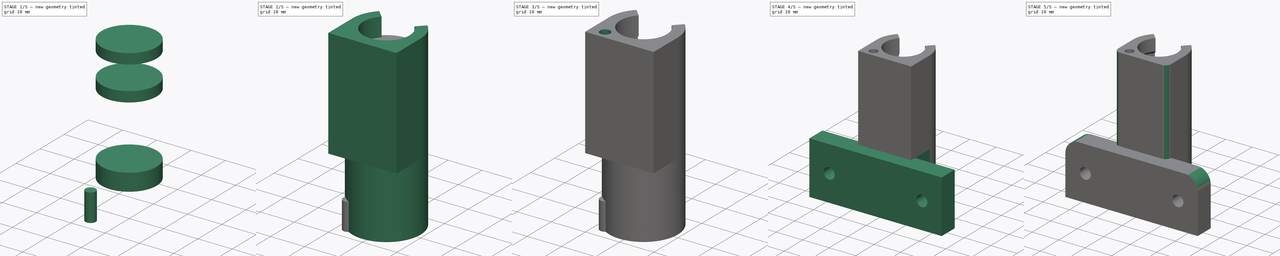
[diagram: build sequence overview — one tinted view per stage of 5, left to right]
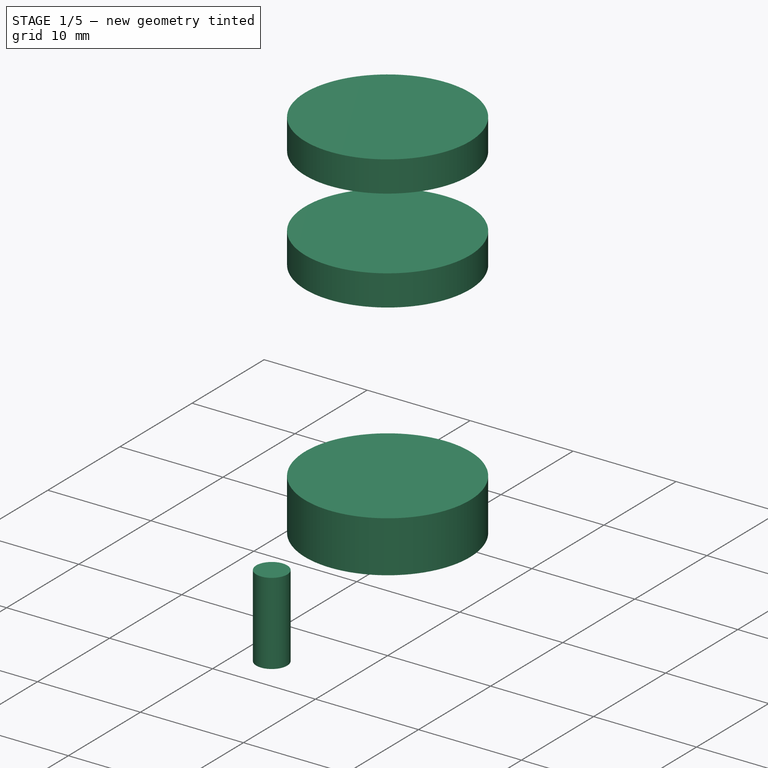
[diagram: stage 1 of 5 — iso view after this stage's code; geometry added in this stage tinted green]
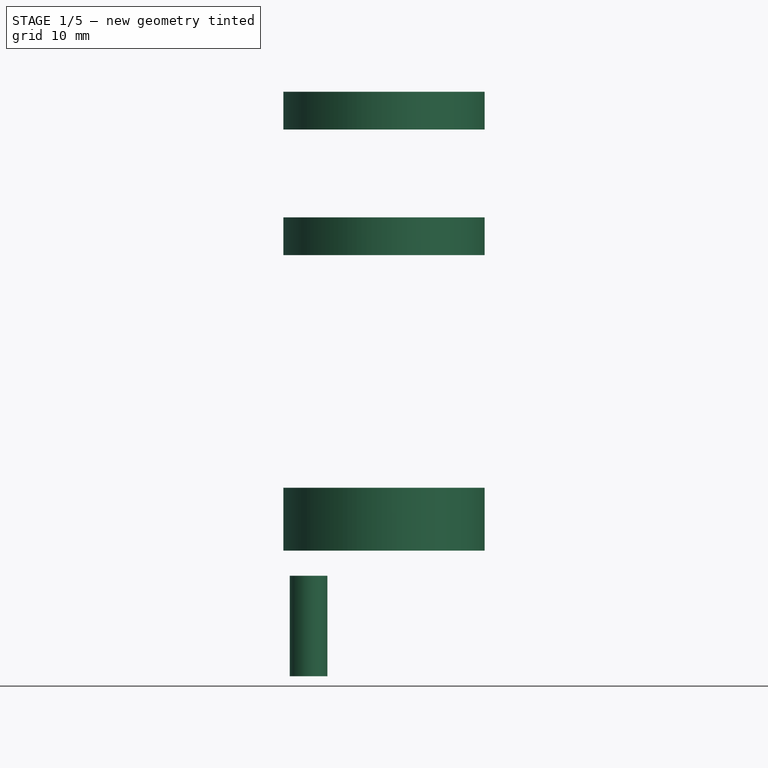
[diagram: stage 1 of 5 — front view after this stage's code; geometry added in this stage tinted green]
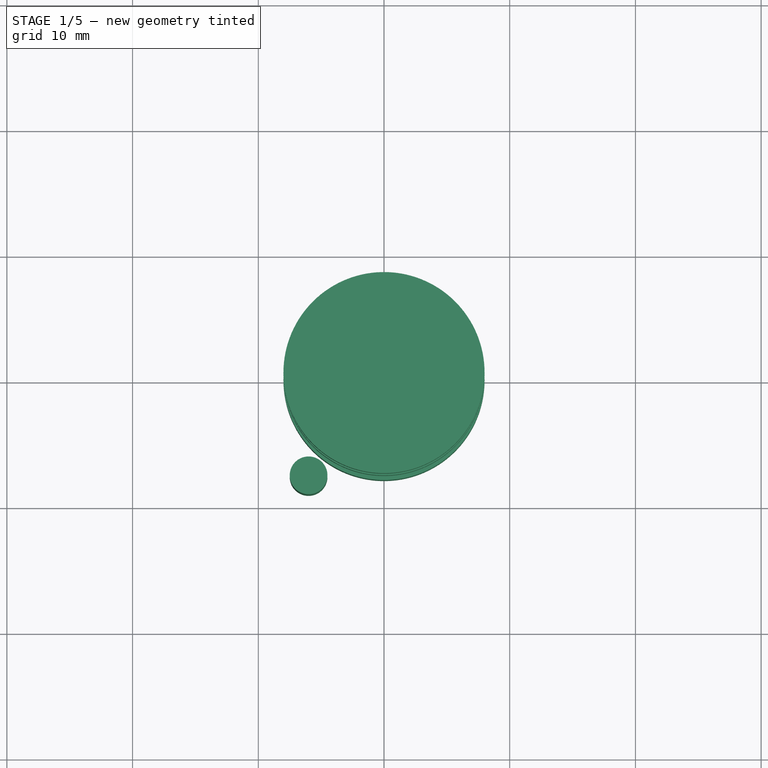
[diagram: stage 1 of 5 — top view after this stage's code; geometry added in this stage tinted green]
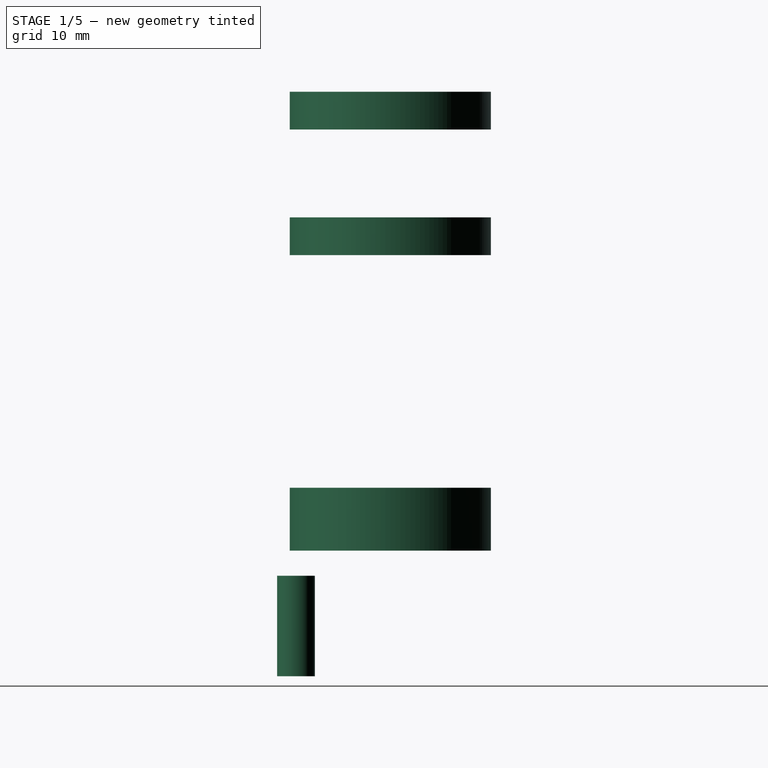
[diagram: stage 1 of 5 — right view after this stage's code; geometry added in this stage tinted green]
FCSTD DOCUMENT  (FreeCAD 0.16R6704 (Git))
Label: z-carriage1
License: All rights reserved
LicenseURL: http://de.wikipedia.org/wiki/Alle_Rechte_vorbehalten
objects: Sketcher::SketchObject×8, PartDesign::Pocket×5, Part::Cylinder×4, Part::Cut×4, PartDesign::Pad×3, PartDesign::Fillet×2, Part::Fuse×1, PartDesign::Chamfer×1
note: 36 computed .brp shape members not serialized (recipe doc carries the construction recipe); baked Part::Feature solids carry a one-line shape summary decoded from their .brp

FEATURE [Part::Cylinder] Cylinder  label="Zylinder"
  Angle = 360
  Height = 5
  Placement = pos=(0,0,10) rot=(0,0,1;0rad)
  Radius = 8
FEATURE [Part::Cylinder] Cylinder001  label="Zylinder001"
  Angle = 360
  Height = 3
  Placement = pos=(0,0,33.5) rot=(0,0,1;0rad)
  Radius = 8
FEATURE [Part::Cylinder] Cylinder002  label="Zylinder002"
  Angle = 360
  Height = 3
  Placement = pos=(0,0,43.5) rot=(0,0,1;0rad)
  Radius = 8
FEATURE [Part::Cylinder] Cylinder003  label="Zylinder003"
  Angle = 360
  Height = 8
  Placement = pos=(-6,-7.5,0) rot=(0,0,1;0rad)
  Radius = 1.5
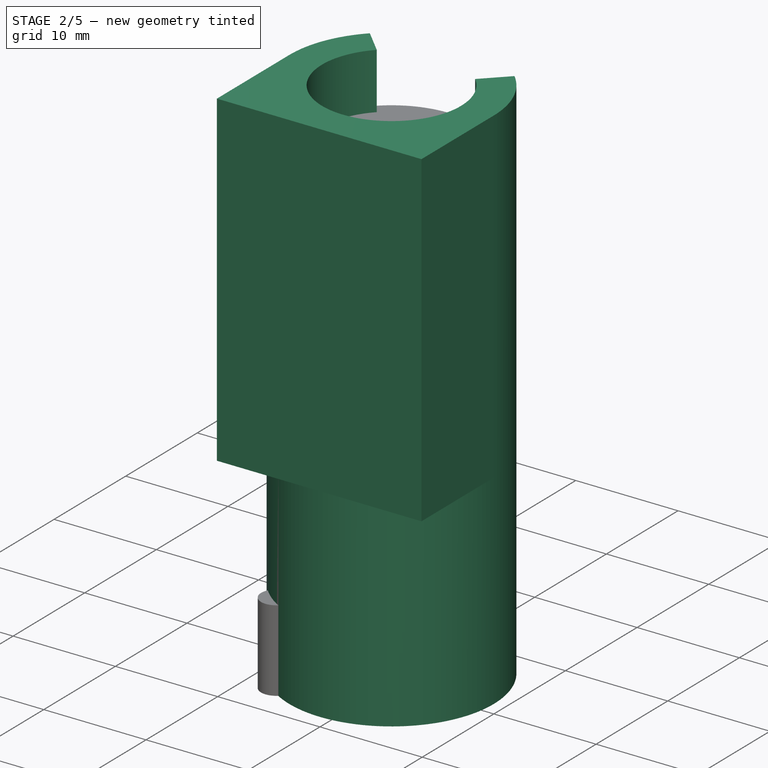
[diagram: stage 2 of 5 — iso view after this stage's code; geometry added in this stage tinted green]
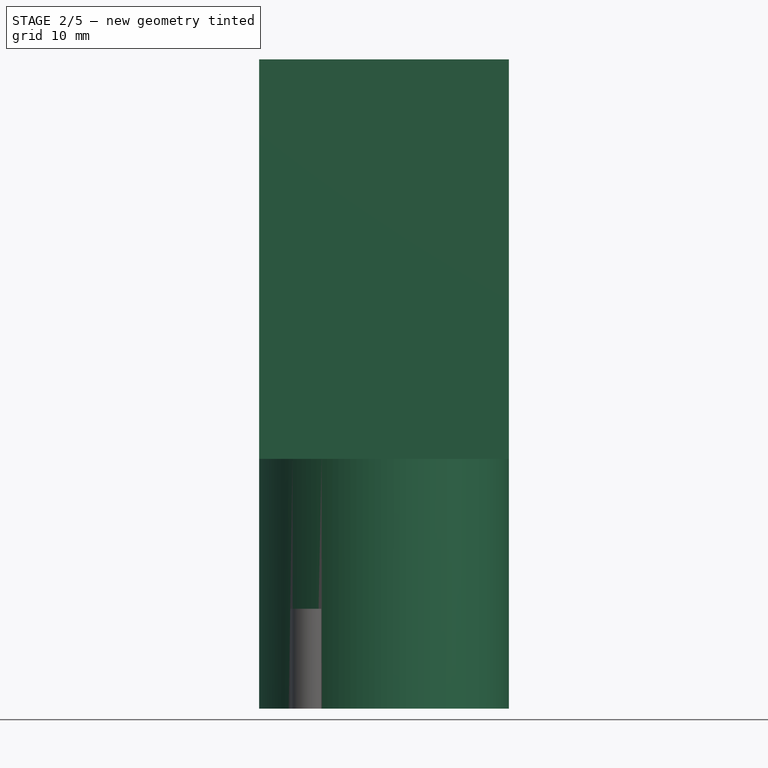
[diagram: stage 2 of 5 — front view after this stage's code; geometry added in this stage tinted green]
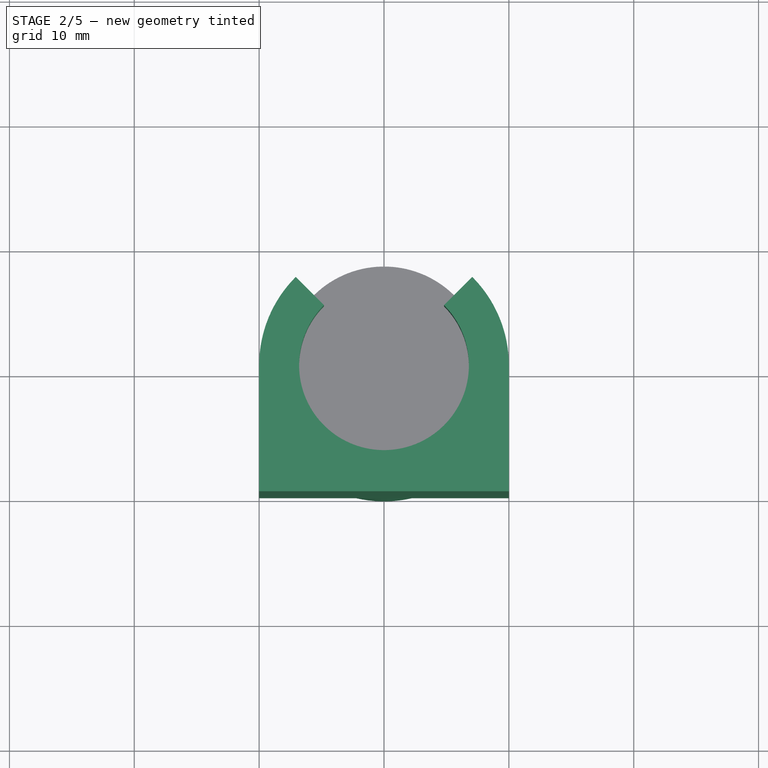
[diagram: stage 2 of 5 — top view after this stage's code; geometry added in this stage tinted green]
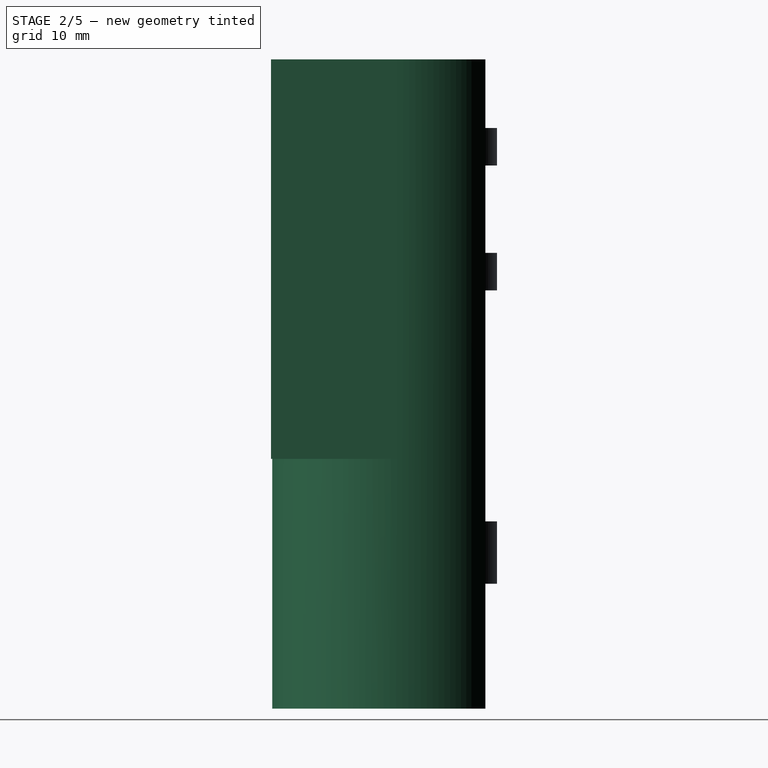
[diagram: stage 2 of 5 — right view after this stage's code; geometry added in this stage tinted green]
FEATURE [Sketcher::SketchObject] Sketch
  sketch-geometry (4):
    g0: ArcOfCircle CenterX=0 CenterY=0 CenterZ=0 NormalX=0 NormalY=0 NormalZ=1 Radius=10 StartAngle=2.35619 EndAngle=7.06858
    g1: ArcOfCircle CenterX=0 CenterY=0 CenterZ=0 NormalX=0 NormalY=0 NormalZ=1 Radius=6 StartAngle=2.35619 EndAngle=7.06858
    g2: LineSegment StartX=-4.24264 StartY=4.24264 StartZ=0 EndX=-7.07107 EndY=7.07107 EndZ=0
    g3: LineSegment StartX=7.07107 StartY=7.07107 StartZ=0 EndX=4.24264 EndY=4.24264 EndZ=0
  constraints (12):
    c: Coincident(g0,g-1)
    c: Coincident(g1,g-1)
    c: Coincident(g2,g1)
    c: Coincident(g2,g0)
    c: Coincident(g3,g0)
    c: Coincident(g3,g1)
    c: Perpendicular(g1,g2)
    c: Perpendicular(g1,g3)
    c: Symmetric(g1,g1,g-2)
    c: Angle(g1) = 4.71239
    c: Radius(g1) = 6
    c: Radius(g0) = 10
FEATURE [PartDesign::Pad] Pad
  Length = 52
  Length2 = 100
  Sketch = -> Sketch
  Type = 0
FEATURE [Sketcher::SketchObject] Sketch005
  Placement = pos=(0,0,52) rot=(0,0,1;0rad)
  Support = -> Pad [Face6]
  sketch-geometry (1):
    g0: Circle CenterX=0 CenterY=0 CenterZ=0 NormalX=0 NormalY=0 NormalZ=1 Radius=6.8
  constraints (2):
    c: Coincident(g0,g-1)
    c: Radius(g0) = 6.8
FEATURE [PartDesign::Pocket] Pocket
  Length = 25
  Sketch = -> Sketch005
  Type = 0
FEATURE [Sketcher::SketchObject] Sketch006
  Placement = pos=(0,0,0) rot=(1,0,0;3.14159rad)
  Support = -> Pocket [Face2]
  sketch-geometry (1):
    g0: Circle CenterX=0 CenterY=0 CenterZ=0 NormalX=0 NormalY=0 NormalZ=1 Radius=6.7
  constraints (2):
    c: Coincident(g0,g-1)
    c: Radius(g0) = 6.7
FEATURE [PartDesign::Pocket] Pocket001
  Length = 25
  Sketch = -> Sketch006
  Type = 0
FEATURE [Sketcher::SketchObject] Sketch007
  ExternalGeometry = -> [Pocket001]
  Placement = pos=(0,0,52) rot=(0,0,1;0rad)
  Support = -> Pocket001 [Face4]
  sketch-geometry (4):
    g0: ArcOfCircle CenterX=0 CenterY=0 CenterZ=0 NormalX=0 NormalY=0 NormalZ=1 Radius=10 StartAngle=3.14159 EndAngle=6.28319
    g1: LineSegment StartX=-10 StartY=-2e-12 StartZ=0 EndX=-10 EndY=-10.1 EndZ=0
    g2: LineSegment StartX=10 StartY=4e-12 StartZ=0 EndX=10 EndY=-10.1 EndZ=0
    g3: LineSegment StartX=-10 StartY=-10.1 StartZ=0 EndX=10 EndY=-10.1 EndZ=0
  constraints (12):
    c: Coincident(g0,g-1)
    c: PointOnObject(g0,g-1)
    c: PointOnObject(g0,g-3)
    c: PointOnObject(g0,g-1)
    c: Coincident(g1,g0)
    c: Vertical(g1)
    c: Coincident(g2,g0)
    c: Vertical(g2)
    c: Coincident(g3,g1)
    c: Coincident(g2,g3)
    c: Equal(g2,g1)
    c: DistanceY(g2,g0) = 10.1
FEATURE [PartDesign::Pad] Pad002
  Length = 32
  Length2 = 100
  Reversed = true
  Sketch = -> Sketch007
  Type = 0
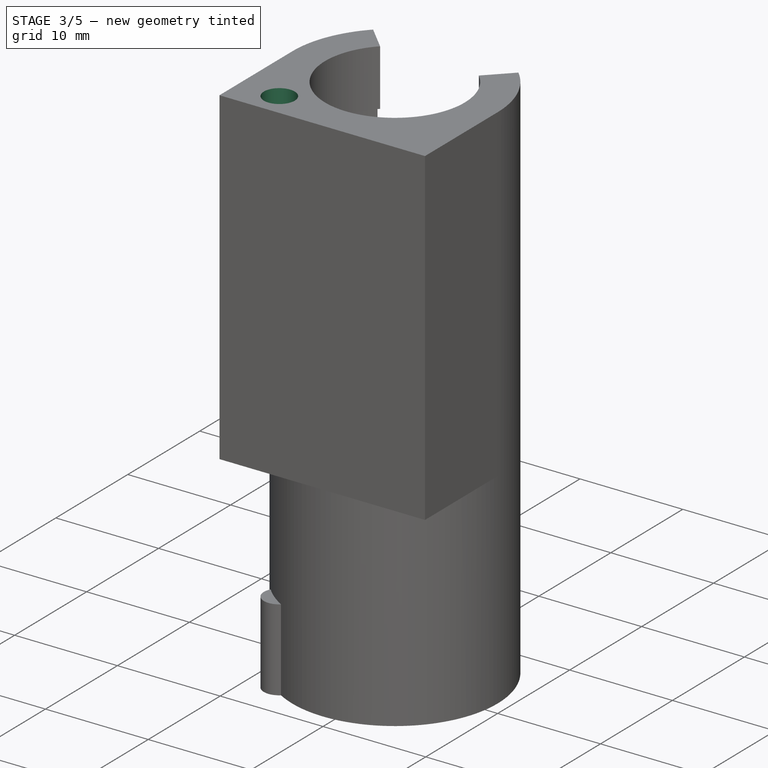
[diagram: stage 3 of 5 — iso view after this stage's code; geometry added in this stage tinted green]
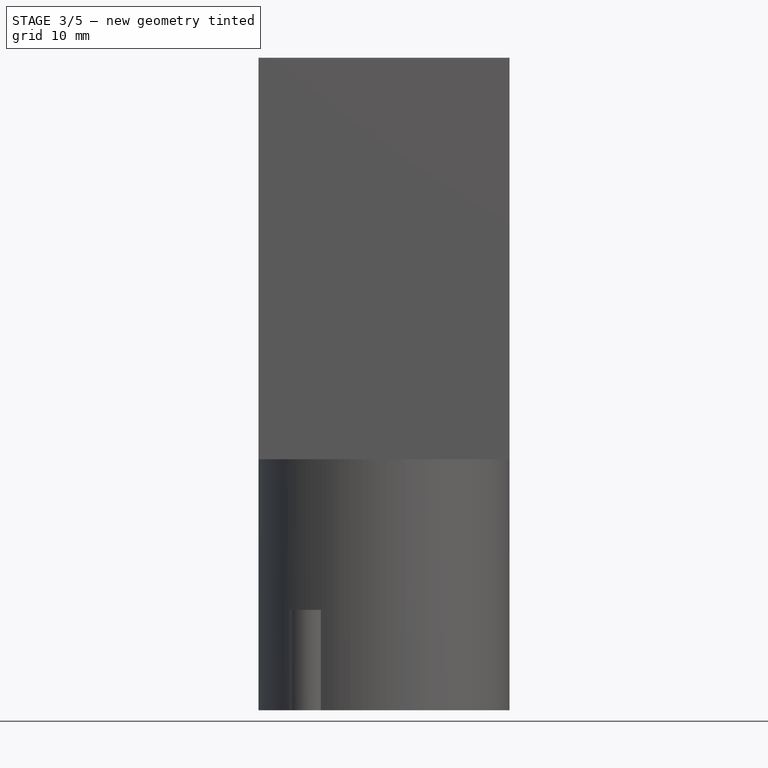
[diagram: stage 3 of 5 — front view after this stage's code; geometry added in this stage tinted green]
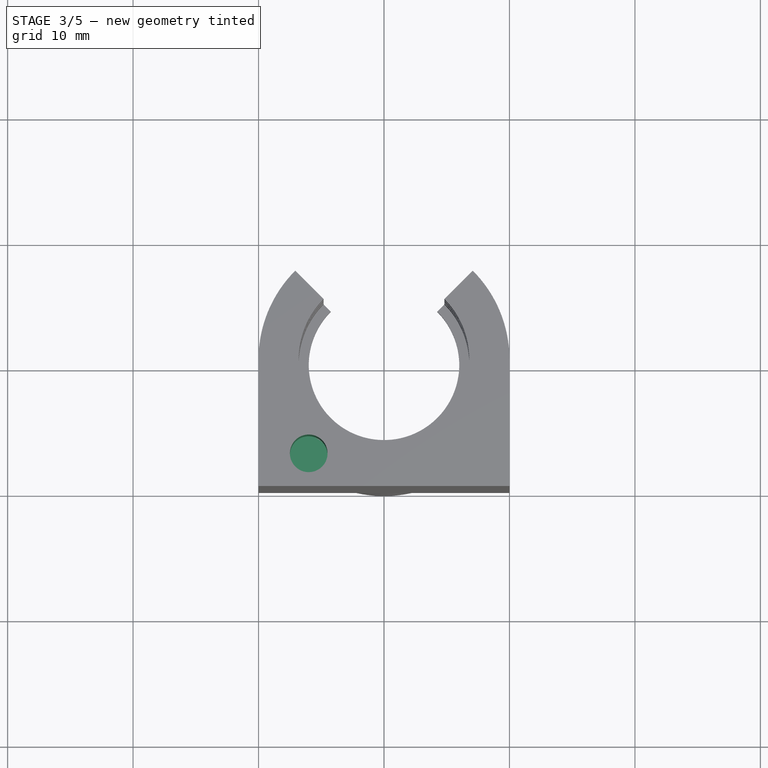
[diagram: stage 3 of 5 — top view after this stage's code; geometry added in this stage tinted green]
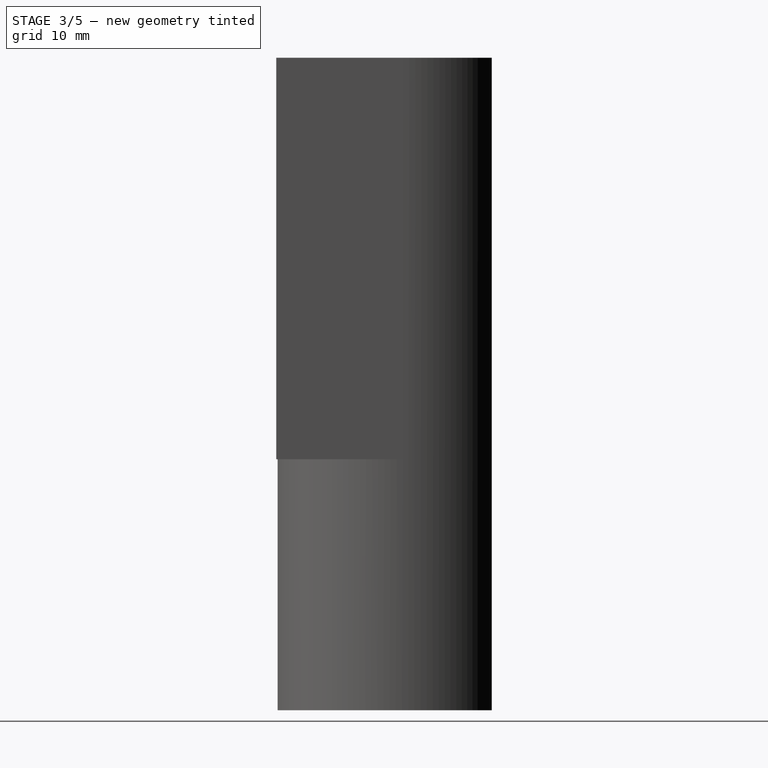
[diagram: stage 3 of 5 — right view after this stage's code; geometry added in this stage tinted green]
FEATURE [Part::Cut] Cut
  Base = -> Pad002
  Tool = -> Cylinder
FEATURE [Part::Cut] Cut001
  Base = -> Cut
  Tool = -> Cylinder001
FEATURE [Part::Cut] Cut002
  Base = -> Cut001
  Tool = -> Cylinder002
FEATURE [Sketcher::SketchObject] Sketch010
  Placement = pos=(0,0,52) rot=(0,0,1;0rad)
  Support = -> Cut002 [Face4]
  sketch-geometry (1):
    g0: Circle CenterX=-6 CenterY=-7.494 CenterZ=0 NormalX=0 NormalY=0 NormalZ=1 Radius=1.5
  constraints (3):
    c: Radius(g0) = 1.5
    c: Distance(g-1,g0) = 9.6
    c: DistanceX(g0,g-1) = 6
FEATURE [PartDesign::Pocket] Pocket004
  Length = 8
  Sketch = -> Sketch010
  Type = 0
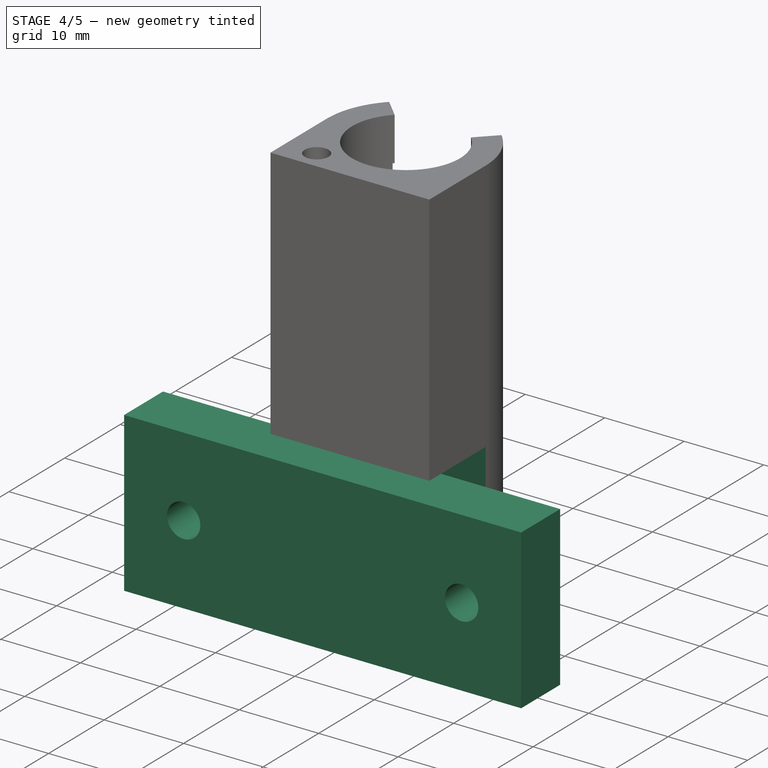
[diagram: stage 4 of 5 — iso view after this stage's code; geometry added in this stage tinted green]
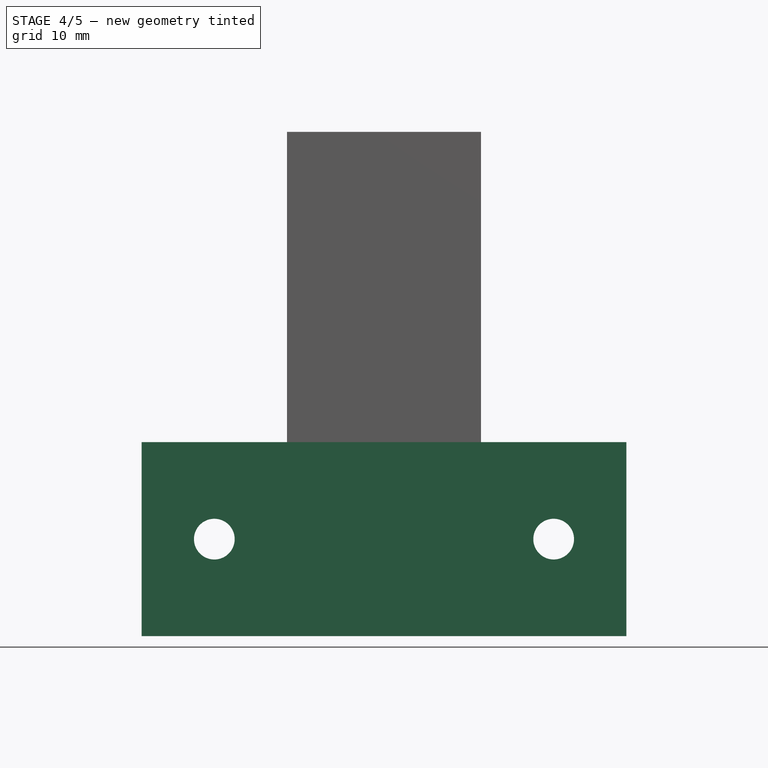
[diagram: stage 4 of 5 — front view after this stage's code; geometry added in this stage tinted green]
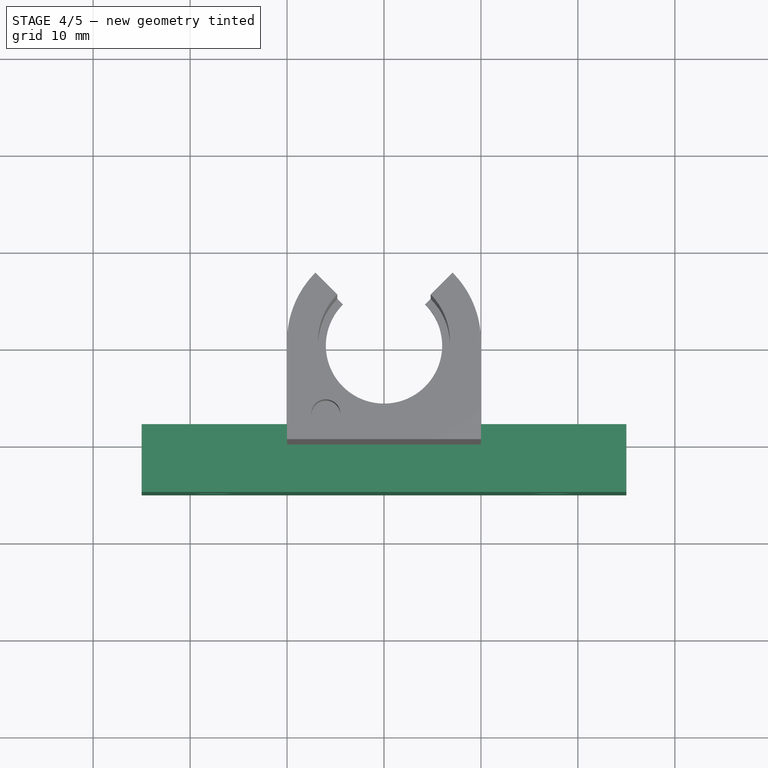
[diagram: stage 4 of 5 — top view after this stage's code; geometry added in this stage tinted green]
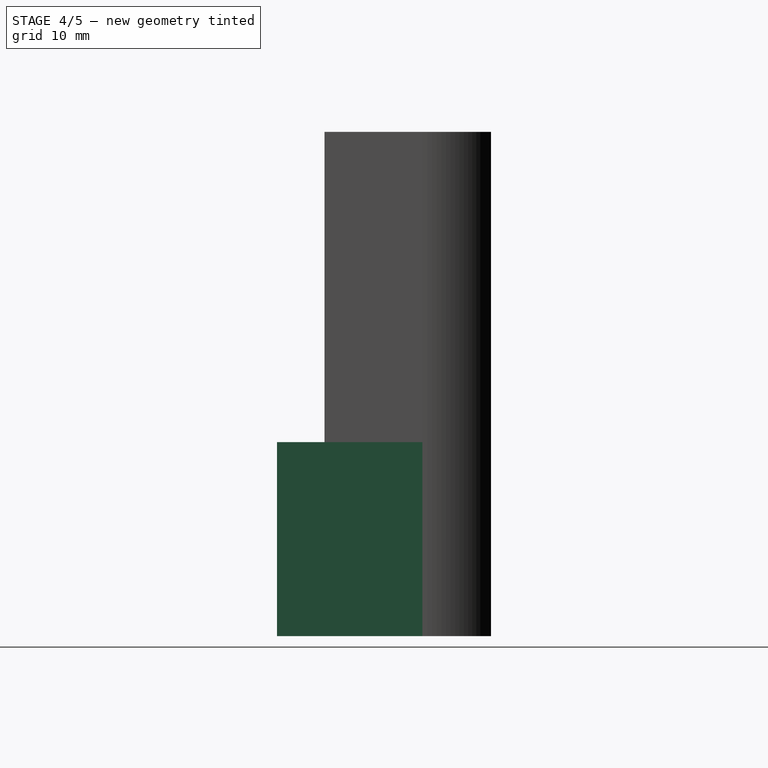
[diagram: stage 4 of 5 — right view after this stage's code; geometry added in this stage tinted green]
FEATURE [Sketcher::SketchObject] Sketch003
  sketch-geometry (8):
    g0: ArcOfCircle CenterX=0 CenterY=0 CenterZ=0 NormalX=0 NormalY=0 NormalZ=1 Radius=10 StartAngle=3.14159 EndAngle=6.28319
    g1: LineSegment StartX=10 StartY=0 StartZ=0 EndX=10 EndY=-8 EndZ=0
    g2: LineSegment StartX=-10 StartY=0 StartZ=0 EndX=-10 EndY=-8 EndZ=0
    g3: LineSegment StartX=-25 StartY=-15 StartZ=0 EndX=25 EndY=-15 EndZ=0
    g4: LineSegment StartX=10 StartY=-8 StartZ=0 EndX=25 EndY=-8 EndZ=0
    g5: LineSegment StartX=25 StartY=-8 StartZ=0 EndX=25 EndY=-15 EndZ=0
    g6: LineSegment StartX=-10 StartY=-8 StartZ=0 EndX=-25 EndY=-8 EndZ=0
    g7: LineSegment StartX=-25 StartY=-8 StartZ=0 EndX=-25 EndY=-15 EndZ=0
  constraints (23):
    c: Coincident(g0,g-1)
    c: Symmetric(g0,g0,g-2)
    c: Coincident(g1,g0)
    c: Vertical(g1)
    c: Coincident(g2,g0)
    c: Horizontal(g3)
    c: Symmetric(g2,g1,g-2)
    c: PointOnObject(g0,g-1)
    c: Radius(g0) = 10
    c: Coincident(g1,g4)
    c: Horizontal(g4)
    c: Coincident(g4,g5)
    c: Vertical(g5)
    c: Coincident(g2,g6)
    c: Horizontal(g6)
    c: Coincident(g6,g7)
    c: Vertical(g7)
    c: Coincident(g3,g5)
    c: Coincident(g3,g7)
    c: DistanceY(g5,g5) = 7
    c: DistanceY(g3,g-1) = 15
    c: DistanceX(g3,g3) = 50
    c: Symmetric(g3,g3,g-2)
FEATURE [PartDesign::Pad] Pad001
  Length = 20
  Length2 = 100
  Sketch = -> Sketch003
  Type = 0
FEATURE [Sketcher::SketchObject] Sketch008
  Placement = pos=(0,-15,0) rot=(1,0,0;1.5708rad)
  Support = -> Pad001 [Face6]
  sketch-geometry (2):
    g0: Circle CenterX=-17.5 CenterY=10 CenterZ=0 NormalX=0 NormalY=0 NormalZ=1 Radius=2.1
    g1: Circle CenterX=17.5 CenterY=10 CenterZ=0 NormalX=0 NormalY=0 NormalZ=1 Radius=2.1
  constraints (6):
    c: Equal(g1,g0)
    c: Radius(g1) = 2.1
    c: DistanceY(g-1,g1) = 10
    c: DistanceY(g-1,g0) = 10
    c: Symmetric(g1,g0,g-2)
    c: DistanceX(g0,g1) = 35
FEATURE [PartDesign::Pocket] Pocket002
  Length = 7
  Sketch = -> Sketch008
  Type = 0
FEATURE [Sketcher::SketchObject] Sketch009
  ExternalGeometry = -> [Pocket002]
  Placement = pos=(0,-8,0) rot=(0,0.707107,0.707107;3.14159rad)
  Support = -> Pocket002 [Face9]
  sketch-geometry (2):
    g0: Circle CenterX=-17.5 CenterY=10 CenterZ=0 NormalX=0 NormalY=0 NormalZ=1 Radius=3.6
    g1: Circle CenterX=17.5 CenterY=10 CenterZ=0 NormalX=0 NormalY=0 NormalZ=1 Radius=3.6
  constraints (4):
    c: Coincident(g0,g-4)
    c: Coincident(g1,g-3)
    c: Equal(g1,g0)
    c: Radius(g1) = 3.6
FEATURE [PartDesign::Pocket] Pocket003
  Length = 2
  Sketch = -> Sketch009
  Type = 0
FEATURE [Part::Fuse] Fusion
  Base = -> Pocket003
  Tool = -> Pocket004
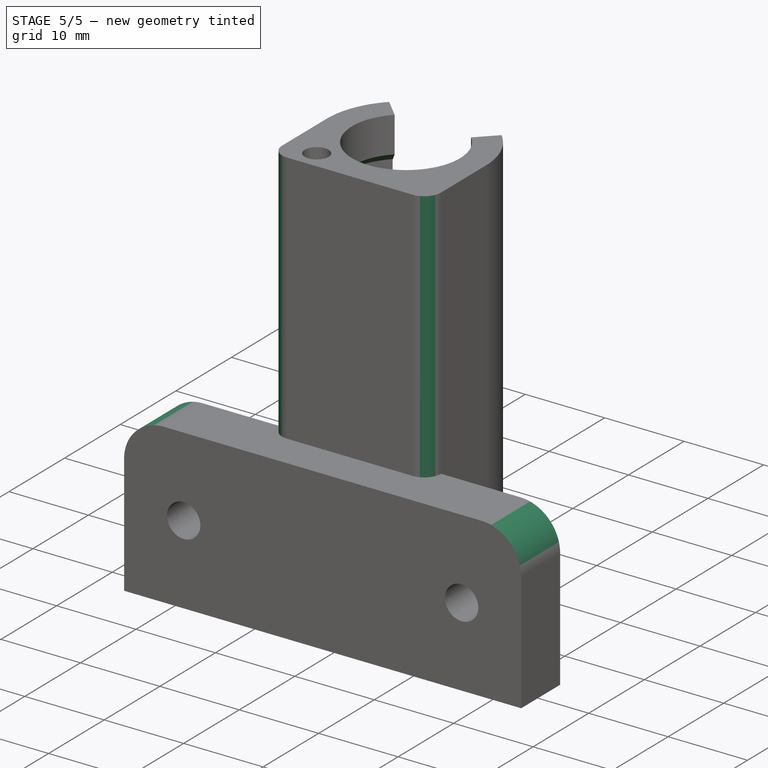
[diagram: stage 5 of 5 — iso view after this stage's code; geometry added in this stage tinted green]
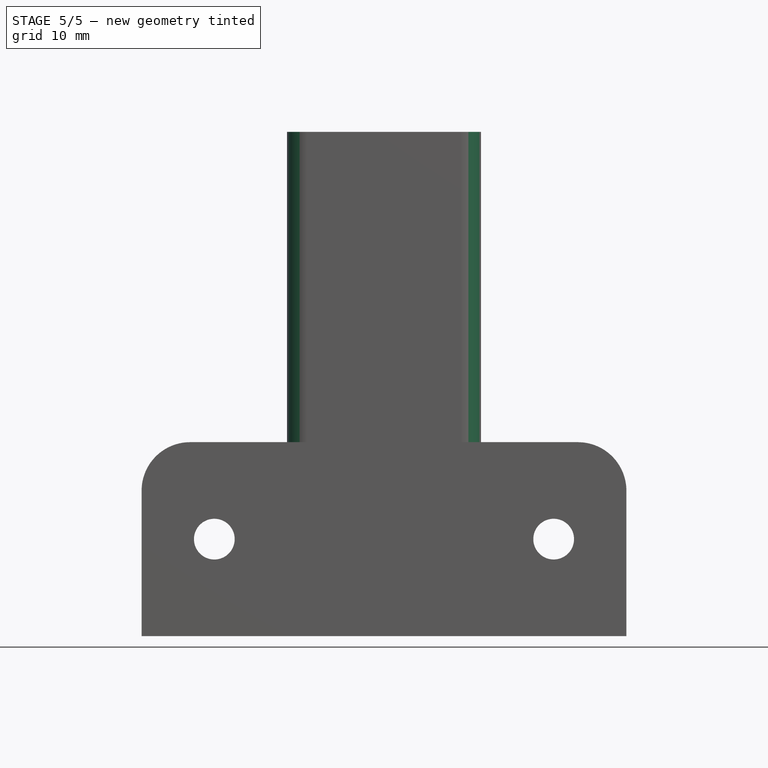
[diagram: stage 5 of 5 — front view after this stage's code; geometry added in this stage tinted green]
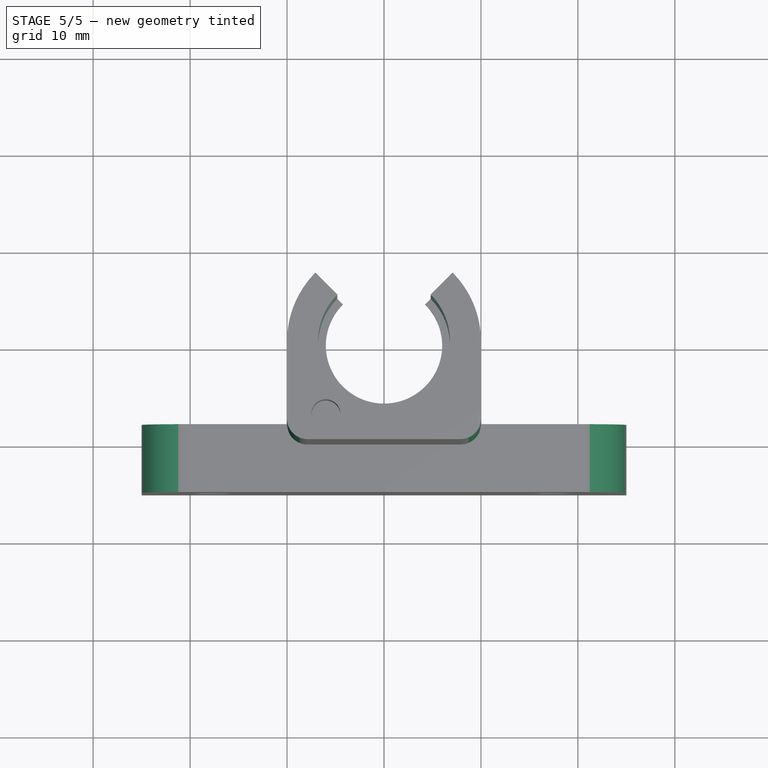
[diagram: stage 5 of 5 — top view after this stage's code; geometry added in this stage tinted green]
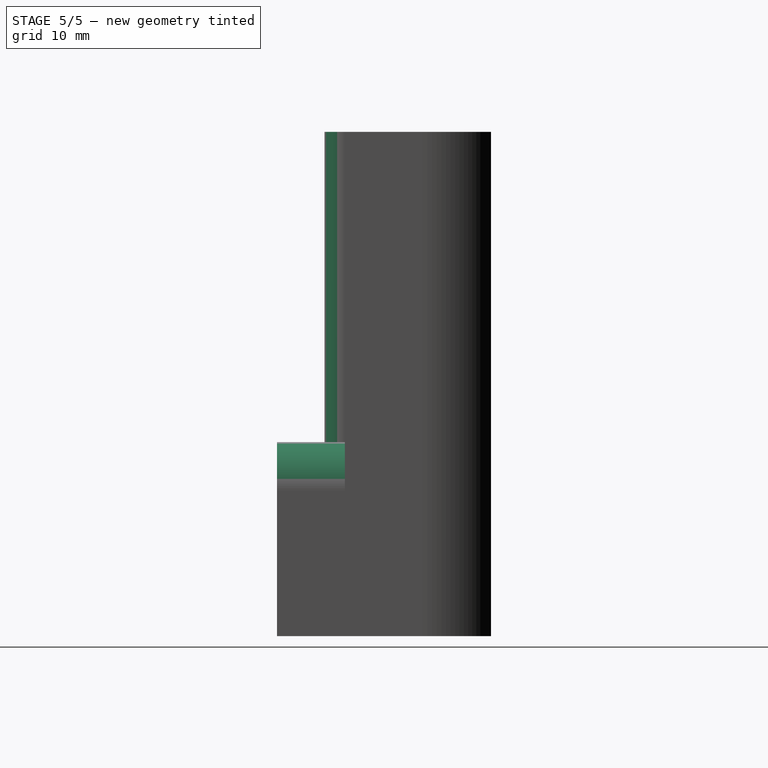
[diagram: stage 5 of 5 — right view after this stage's code; geometry added in this stage tinted green]
FEATURE [Part::Cut] Cut003
  Base = -> Fusion
  Tool = -> Cylinder003
FEATURE [PartDesign::Fillet] Fillet
  Base = -> Cut003 [Edge17,Edge19]
  Radius = 5
FEATURE [PartDesign::Fillet] Fillet001
  Base = -> Fillet [Edge38,Edge32]
  Radius = 2.1
FEATURE [PartDesign::Chamfer] Chamfer
  Base = -> Fillet001 [Edge147,Edge122,Edge137,Edge130,Edge127,Edge119]
  Size = 1
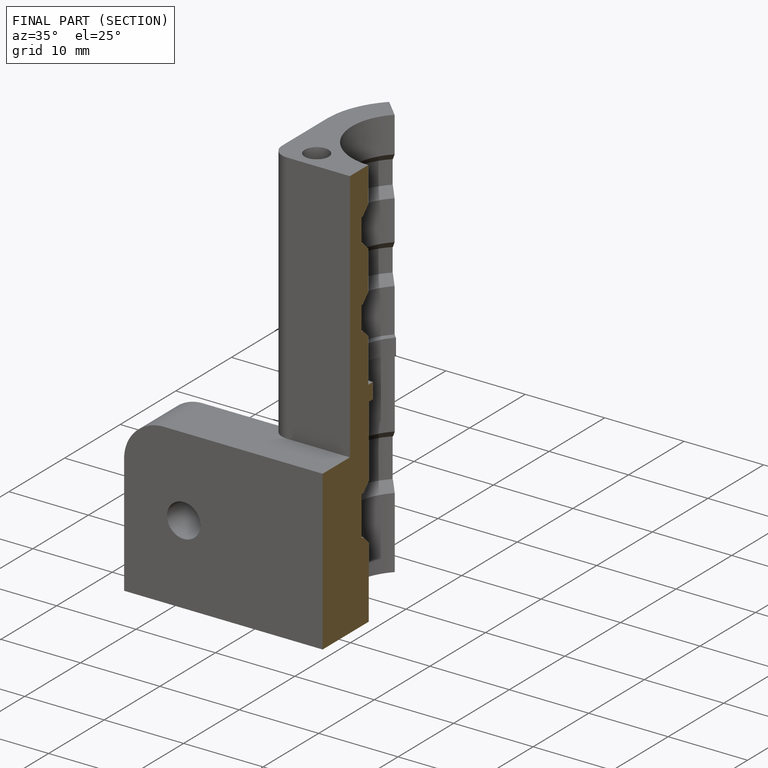
[diagram: finished part — half-section view (interior)]
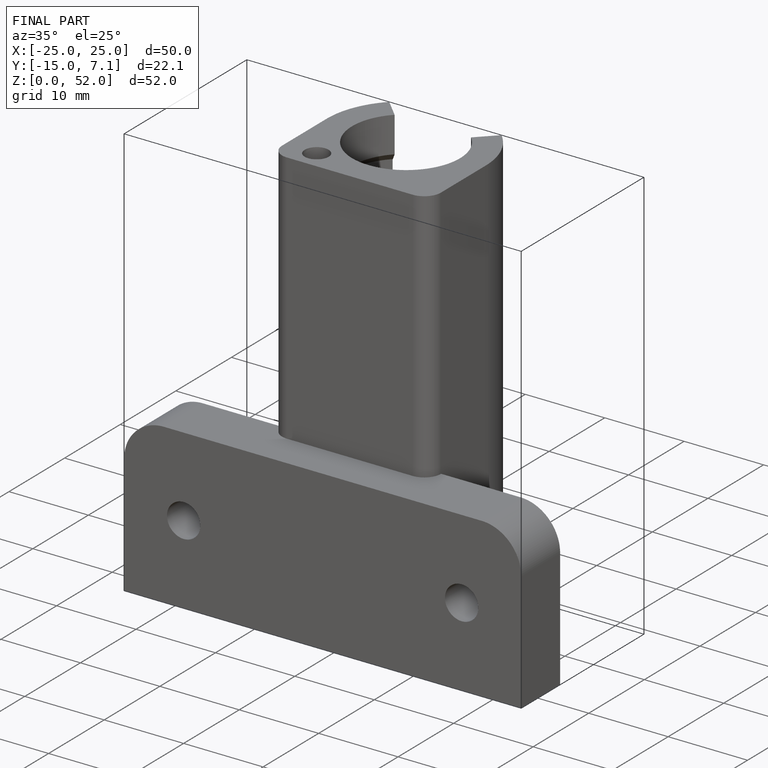
[diagram: finished part — iso view with bounding-box wireframe]
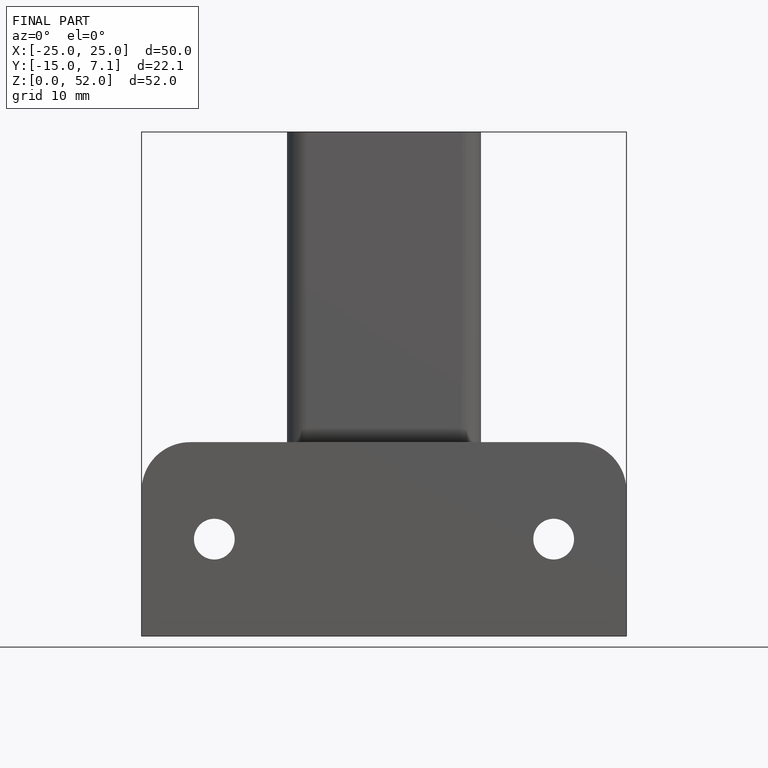
[diagram: finished part — front view with bounding-box wireframe]
